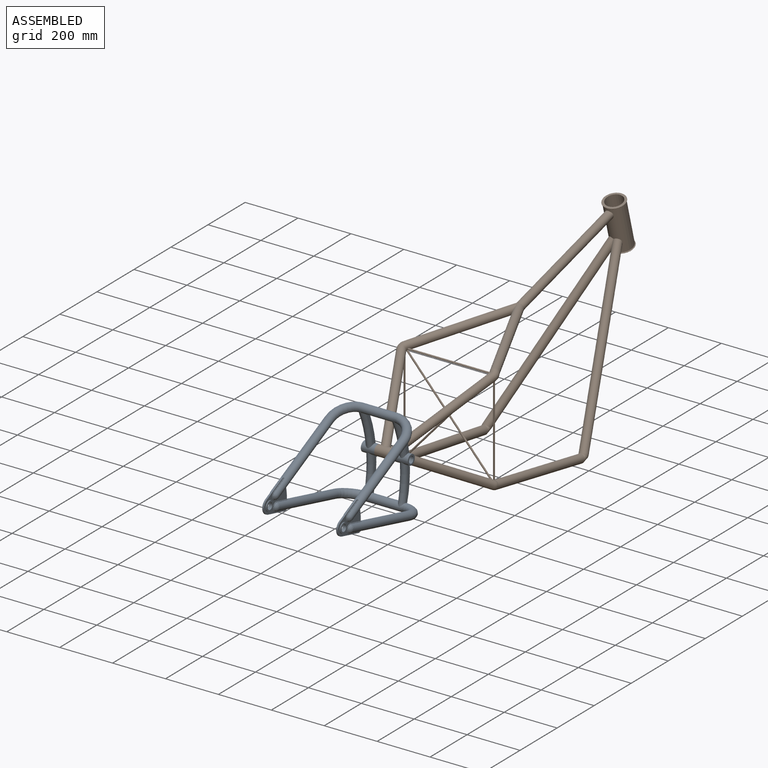
[diagram: assembled view]
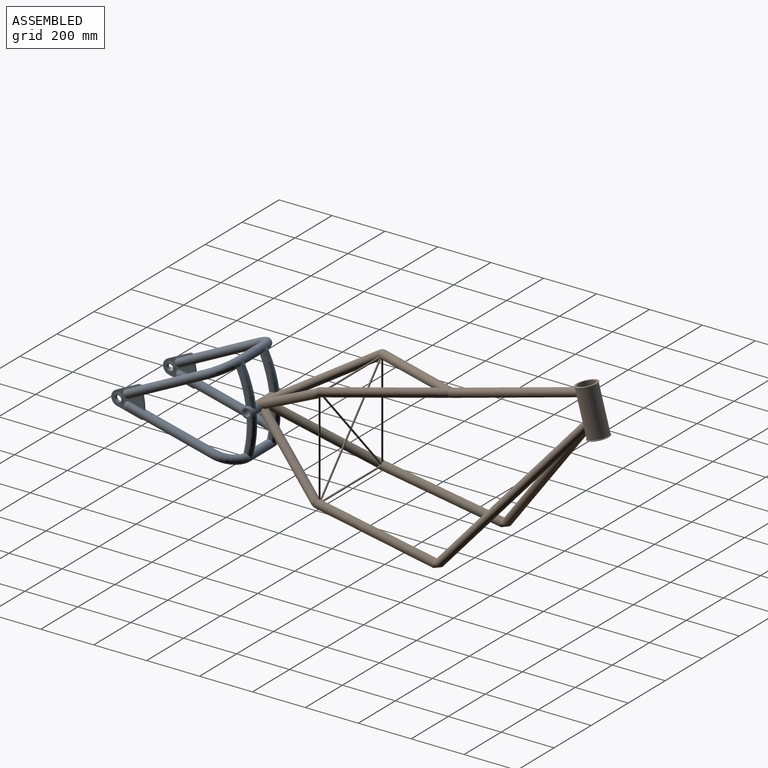
[diagram: assembled view, second angle]
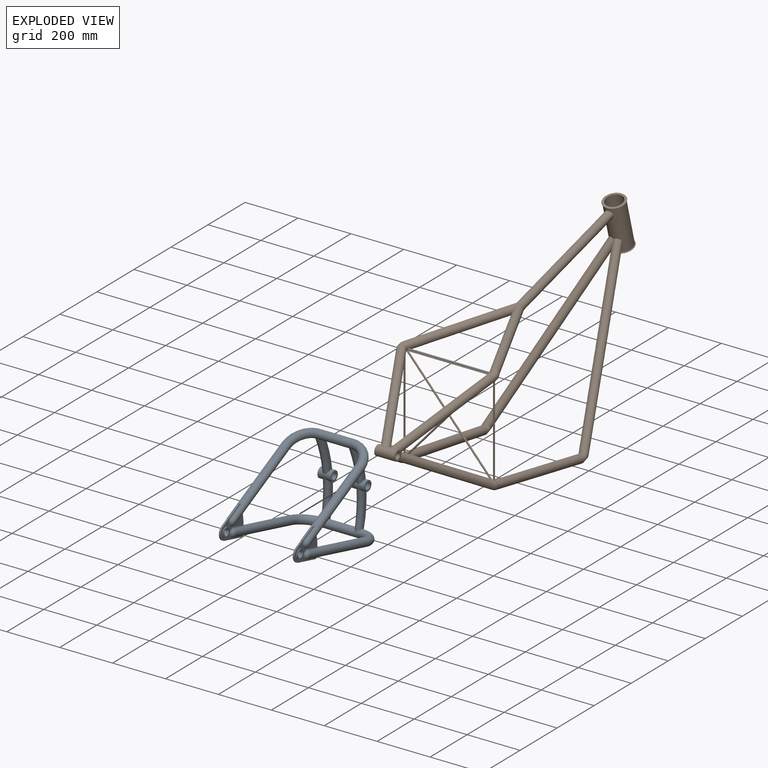
[diagram: exploded view]
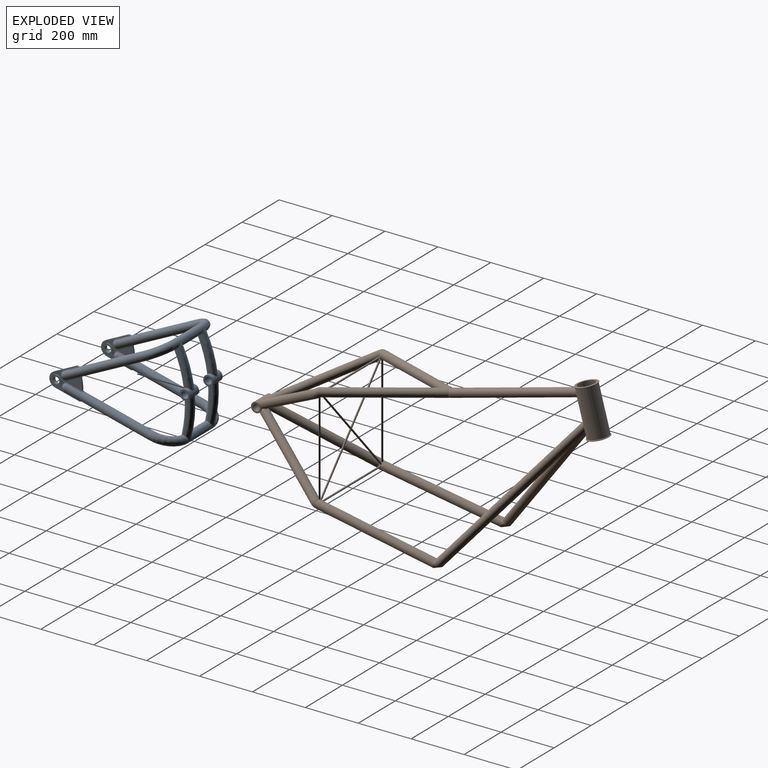
[diagram: exploded view, second angle]
ASSEMBLY  parts=2 mates=2
PART A: 206 faces, bbox 499.2x326.3x341.5 mm
  f0: cylinder r=12.7mm len=50.8mm, axis (0,-1,0), area 4053.7mm2, adj f2,f3
  f1: cylinder r=19.05mm len=50.8mm, axis (0,-1,0), area 4378mm2, adj f2,f3,f4,f5,f41,f42,f45,f46
  f2: plane 38.1x38.1mm, normal (0,1,0), area 633.4mm2, adj f0,f1
  f3: plane 38.1x38.1mm, normal (0,-1,0), area 633.4mm2, adj f0,f1
  f4: torus R=418.53mm, axis (0,-1,0), area 5792.7mm2, adj f1,f48,f49,f50,f52
  f5: torus R=443.93mm, axis (0,-1,0), area 5440.1mm2, adj f1,f49,f50,f52,f59
  f6: cylinder r=1.59mm len=9.53mm, axis (0,1,0), area 24.2mm2, adj f7,f11,f16,f29
  f7: cylinder r=1.59mm len=48.48mm, axis (0.77,0,-0.64), area 193.5mm2, adj f6,f13,f16,f29,f30
  f8: cylinder r=1.59mm len=45.59mm, axis (-0.77,0,0.64), area 181.6mm2, adj f12,f13,f16,f24,f30
  f9: cylinder r=1.59mm len=45.59mm, axis (0.77,0,-0.64), area 181.6mm2, adj f10,f12,f16,f24,f31
  f10: torus R=15.85mm, axis (0,1,0), area 165.3mm2, adj f9,f11,f15,f31
  f11: cylinder r=1.59mm len=48.48mm, axis (-0.77,0,0.64), area 193.5mm2, adj f6,f10,f16,f29,f31
  f12: cylinder r=1.59mm len=9.53mm, axis (0,-1,0), area 24.9mm2, adj f8,f9,f16,f24
  f13: torus R=15.85mm, axis (0,-1,0), area 165.3mm2, adj f7,f8,f14,f30
  f14: sphere r=15.88mm, area 561.4mm2, adj f13,f16
  f15: sphere r=15.88mm, area 561.4mm2, adj f10,f16
  f16: cylinder r=15.88mm len=273.36mm, axis (0.77,0,-0.64), area 31821.4mm2, adj f6,f7,f8,f9,f11,f12,f14,f15
  f17: sphere r=15.88mm, area 561.4mm2, adj f40,f101
  f18: sphere r=15.88mm, area 561.4mm2, adj f40,f98
  f19: sphere r=15.88mm, area 561.4mm2, adj f21,f93
  f20: sphere r=15.88mm, area 561.4mm2, adj f21,f89
  f21: cylinder r=15.88mm len=330.2mm, axis (-1,0,0), area 31821mm2, adj f19,f20,f59,f88,f90,f91,f92,f94
  f22: sphere r=15.88mm, area 561.4mm2, adj f37,f85
  f23: sphere r=15.88mm, area 561.4mm2, adj f37,f81
  f24: cylinder r=177.8mm len=43.86mm, axis (0,-1,0), area 297.2mm2, adj f8,f9,f12,f30,f31,f82,f83,f84
  f25: cylinder r=4.96mm len=6.35mm, axis (0,-1,0), area 40.3mm2, adj f26,f30,f31,f80,f86,f87
  f26: plane 95.5x6.35mm, normal (0,0,-1), area 606.4mm2, adj f25,f27,f30,f31
  f27: cylinder r=28.12mm len=49.67mm, axis (0,-1,0), area 436.3mm2, adj f26,f28,f30,f31
  f28: plane 73.16x61.39mm, normal (0.64,0,0.77), area 606.4mm2, adj f27,f29,f30,f31
  f29: cylinder r=4.96mm len=6.35mm, axis (0,-1,0), area 40.3mm2, adj f6,f7,f11,f28,f30,f31
  f30: plane 128.37x112.21mm, normal (0,1,0), area 3675.8mm2, adj f7,f8,f13,f24,f25,f26,f27,f28
  f31: plane 128.37x112.21mm, normal (0,-1,0), area 3675.8mm2, adj f9,f10,f11,f24,f25,f26,f27,f28
  f32: cylinder r=18.85mm len=37.7mm, axis (0,-1,0), area 451.2mm2, adj f31,f36
  f33: cylinder r=12.5mm len=25mm, axis (0,-1,0), area 1097.2mm2, adj f35,f36
  f34: cylinder r=18.85mm len=37.7mm, axis (0,-1,0), area 451.2mm2, adj f30,f35
  f35: plane 37.7x37.7mm, normal (0,1,0), area 625.4mm2, adj f33,f34
  f36: plane 37.7x37.7mm, normal (0,-1,0), area 625.4mm2, adj f32,f33
  f37: cylinder r=15.88mm len=330.2mm, axis (1,0,0), area 31821.4mm2, adj f22,f23,f60,f80,f82,f83,f84,f86
  f38: torus R=443.93mm, axis (0,1,0), area 5439.6mm2, adj f52,f57,f58,f60,f76
  f39: torus R=418.53mm, axis (0,1,0), area 5792.4mm2, adj f52,f56,f57,f58,f76
  f40: cylinder r=15.88mm len=273.36mm, axis (-0.77,0,0.64), area 31821mm2, adj f17,f18,f53,f96,f97,f99,f100,f102
  f41: plane 114.28x73.14mm, normal (0,-1,0), area 1033.6mm2, adj f1,f45,f46,f47,f53
  f42: plane 114.28x73.25mm, normal (0,1,0), area 1033.8mm2, adj f1,f45,f46,f51
  f43: plane 114.28x73.14mm, normal (0,1,0), area 1033.6mm2, adj f54,f55,f61,f62,f76
  f44: plane 114.28x73.25mm, normal (0,-1,0), area 1033.8mm2, adj f51,f61,f62,f76
  f45: torus R=418.53mm, axis (0,-1,0), area 5793.6mm2, adj f1,f41,f42,f47,f51
  f46: torus R=443.93mm, axis (0,-1,0), area 5441.6mm2, adj f1,f41,f42,f51,f53
  f47: cylinder r=15.88mm len=23.24mm, axis (0,1,0), area 224.2mm2, adj f41,f45,f53
  f48: cylinder r=15.88mm len=16.6mm, axis (0,1,0), area 224.2mm2, adj f4,f49,f59
  f49: plane 128.9x27.56mm, normal (0,-1,0), area 1033.6mm2, adj f1,f4,f5,f48,f59
  f50: plane 128.89x27.55mm, normal (0,1,0), area 1033.8mm2, adj f1,f4,f5,f52
  f51: cylinder r=15.88mm len=127mm, axis (0,1,0), area 11798mm2, adj f42,f44,f45,f46,f53,f54,f61,f62
  f52: cylinder r=15.88mm len=127mm, axis (0,1,0), area 11798mm2, adj f4,f5,f38,f39,f50,f58,f59,f60
  f53: torus R=76.2mm, axis (-0.64,0,-0.77), area 11731.3mm2, adj f40,f41,f46,f47,f51
  f54: torus R=76.2mm, axis (-0.64,0,-0.77), area 11731.3mm2, adj f16,f43,f51,f55,f61
  f55: cylinder r=15.88mm len=23.24mm, axis (0,-1,0), area 224.2mm2, adj f43,f54,f62
  f56: cylinder r=15.88mm len=16.6mm, axis (0,-1,0), area 224.2mm2, adj f39,f57,f60
  f57: plane 128.9x27.56mm, normal (0,1,0), area 1033.6mm2, adj f38,f39,f56,f60,f76
  f58: plane 128.89x27.55mm, normal (0,-1,0), area 1033.8mm2, adj f38,f39,f52,f76
  f59: torus R=76.2mm, axis (0,0,-1), area 11731.3mm2, adj f5,f21,f48,f49,f52
  f60: torus R=76.2mm, axis (0,0,-1), area 11731.3mm2, adj f37,f38,f52,f56,f57
  f61: torus R=443.93mm, axis (0,1,0), area 5440.1mm2, adj f43,f44,f51,f54,f76
  f62: torus R=418.53mm, axis (0,1,0), area 5792.7mm2, adj f43,f44,f51,f55,f76
  f63: cylinder r=177.8mm len=43.86mm, axis (0,1,0), area 297.2mm2, adj f69,f70,f90,f91,f92,f96,f99,f100
  f64: cylinder r=4.96mm len=6.35mm, axis (0,1,0), area 40.3mm2, adj f65,f69,f70,f88,f94,f95
  f65: plane 95.5x6.35mm, normal (0,0,-1), area 606.4mm2, adj f64,f66,f69,f70
  f66: cylinder r=28.12mm len=49.67mm, axis (0,1,0), area 436.3mm2, adj f65,f67,f69,f70
  f67: plane 73.16x61.39mm, normal (0.64,0,0.77), area 606.4mm2, adj f66,f68,f69,f70
  f68: cylinder r=4.96mm len=6.35mm, axis (0,1,0), area 40.3mm2, adj f67,f69,f70,f97,f102,f103
  f69: plane 128.37x112.21mm, normal (0,-1,0), area 3675.8mm2, adj f63,f64,f65,f66,f67,f68,f73,f92
  f70: plane 128.37x112.21mm, normal (0,1,0), area 3675.8mm2, adj f63,f64,f65,f66,f67,f68,f71,f88
  f71: cylinder r=18.85mm len=37.7mm, axis (0,1,0), area 451.2mm2, adj f70,f75
  f72: cylinder r=12.5mm len=25mm, axis (0,1,0), area 1097.2mm2, adj f74,f75
  f73: cylinder r=18.85mm len=37.7mm, axis (0,1,0), area 451.2mm2, adj f69,f74
  f74: plane 37.7x37.7mm, normal (0,-1,0), area 625.4mm2, adj f72,f73
  f75: plane 37.7x37.7mm, normal (0,1,0), area 625.4mm2, adj f71,f72
  f76: cylinder r=19.05mm len=50.8mm, axis (0,1,0), area 4378.1mm2, adj f38,f39,f43,f44,f57,f58,f61,f62
  f77: plane 38.1x38.1mm, normal (0,-1,0), area 633.4mm2, adj f76,f79
  f78: plane 38.1x38.1mm, normal (0,1,0), area 633.4mm2, adj f76,f79
  f79: cylinder r=12.7mm len=50.8mm, axis (0,-1,0), area 4053.7mm2, adj f77,f78
  f80: cylinder r=1.59mm len=61.4mm, axis (-1,0,0), area 193.5mm2, adj f25,f31,f37,f81,f87
  f81: torus R=15.85mm, axis (0,-1,0), area 165.3mm2, adj f23,f31,f80,f83
  f82: cylinder r=1.59mm len=9.53mm, axis (0,-1,0), area 24.9mm2, adj f24,f37,f83,f84
  f83: cylinder r=1.59mm len=57.63mm, axis (1,0,0), area 181.6mm2, adj f24,f31,f37,f81,f82
  f84: cylinder r=1.59mm len=57.63mm, axis (-1,0,0), area 181.6mm2, adj f24,f30,f37,f82,f85
  f85: torus R=15.85mm, axis (0,1,0), area 165.3mm2, adj f22,f30,f84,f86
  f86: cylinder r=1.59mm len=61.4mm, axis (1,0,0), area 193.5mm2, adj f25,f30,f37,f85,f87
  f87: cylinder r=1.59mm len=9.53mm, axis (0,1,0), area 24.2mm2, adj f25,f37,f80,f86
  f88: cylinder r=1.59mm len=61.4mm, axis (-1,0,0), area 193.5mm2, adj f21,f64,f70,f89,f95
  f89: torus R=15.85mm, axis (0,1,0), area 165.3mm2, adj f20,f70,f88,f91
  f90: cylinder r=1.59mm len=9.53mm, axis (0,1,0), area 24.9mm2, adj f21,f63,f91,f92
  f91: cylinder r=1.59mm len=57.63mm, axis (1,0,0), area 181.6mm2, adj f21,f63,f70,f89,f90
  f92: cylinder r=1.59mm len=57.63mm, axis (-1,0,0), area 181.6mm2, adj f21,f63,f69,f90,f93
  f93: torus R=15.85mm, axis (0,-1,0), area 165.3mm2, adj f19,f69,f92,f94
  f94: cylinder r=1.59mm len=61.4mm, axis (1,0,0), area 193.5mm2, adj f21,f64,f69,f93,f95
  f95: cylinder r=1.59mm len=9.53mm, axis (0,-1,0), area 24.2mm2, adj f21,f64,f88,f94
  f96: cylinder r=1.59mm len=9.53mm, axis (0,1,0), area 24.9mm2, adj f40,f63,f99,f100
  f97: cylinder r=1.59mm len=48.48mm, axis (-0.77,0,0.64), area 193.5mm2, adj f40,f68,f70,f98,f103
  f98: torus R=15.85mm, axis (0,-1,0), area 165.3mm2, adj f18,f70,f97,f99
  f99: cylinder r=1.59mm len=45.59mm, axis (0.77,0,-0.64), area 181.6mm2, adj f40,f63,f70,f96,f98
  f100: cylinder r=1.59mm len=45.59mm, axis (-0.77,0,0.64), area 181.6mm2, adj f40,f63,f69,f96,f101
  f101: torus R=15.85mm, axis (0,1,0), area 165.3mm2, adj f17,f69,f100,f102
  f102: cylinder r=1.59mm len=48.48mm, axis (0.77,0,-0.64), area 193.5mm2, adj f40,f68,f69,f101,f103
  f103: cylinder r=1.59mm len=9.53mm, axis (0,-1,0), area 24.2mm2, adj f40,f68,f97,f102
  f104: cylinder r=15.88mm len=41.75mm, axis (0.77,0,-0.64), area 37.7mm2, adj f105,f108,f110,f113
  f105: plane 41.71x35mm, normal (0.64,0,0.77), area 37.6mm2, adj f104,f109,f110,f113
  f106: cylinder r=15.88mm len=44.64mm, axis (0.77,0,-0.64), area 40.3mm2, adj f107,f108,f111,f114
  f107: plane 44.6x37.43mm, normal (-0.64,0,-0.77), area 40.2mm2, adj f106,f109,f111,f114
  f108: sphere r=15.88mm, area 34.5mm2, adj f104,f106,f109,f112
  f109: cylinder r=15.85mm len=27.99mm, axis (0,-1,0), area 34.3mm2, adj f105,f107,f108,f112
  f110: cylinder r=1.59mm len=0.69mm, axis (0,-1,0), area 0mm2, adj f104,f105,f113
  f111: cylinder r=1.59mm len=44.64mm, axis (-0.77,0,0.64), area 3.2mm2, adj f106,f107,f112,f114
  f112: torus R=15.85mm, axis (0,1,0), area 2.7mm2, adj f108,f109,f111,f113
  f113: cylinder r=1.59mm len=41.75mm, axis (0.77,0,-0.64), area 3mm2, adj f104,f105,f110,f112
  f114: cylinder r=1.59mm len=0.69mm, axis (0,1,0), area 0mm2, adj f106,f107,f111
  f115: cylinder r=15.88mm len=41.75mm, axis (0.77,0,-0.64), area 37.7mm2, adj f116,f117,f121,f122
  f116: plane 41.71x35mm, normal (0.64,0,0.77), area 37.6mm2, adj f115,f118,f121,f122
  f117: sphere r=15.88mm, area 34.5mm2, adj f115,f118,f119,f123
  f118: cylinder r=15.85mm len=27.99mm, axis (0,-1,0), area 34.3mm2, adj f116,f117,f120,f123
  f119: cylinder r=15.88mm len=44.64mm, axis (0.77,0,-0.64), area 40.3mm2, adj f117,f120,f124,f125
  f120: plane 44.6x37.43mm, normal (-0.64,0,-0.77), area 40.2mm2, adj f118,f119,f124,f125
  f121: cylinder r=1.59mm len=0.69mm, axis (0,-1,0), area 0mm2, adj f115,f116,f122
  f122: cylinder r=1.59mm len=41.75mm, axis (-0.77,0,0.64), area 3mm2, adj f115,f116,f121,f123
  f123: torus R=15.85mm, axis (0,-1,0), area 2.7mm2, adj f117,f118,f122,f124
  f124: cylinder r=1.59mm len=44.64mm, axis (0.77,0,-0.64), area 3.2mm2, adj f119,f120,f123,f125
  f125: cylinder r=1.59mm len=0.69mm, axis (0,1,0), area 0mm2, adj f119,f120,f124
  f126: cylinder r=1.59mm len=44.64mm, axis (-0.77,0,0.64), area 3.2mm2, adj f127,f130,f133,f134
  f127: torus R=15.85mm, axis (0,-1,0), area 2.7mm2, adj f126,f129,f135,f136
  f128: cylinder r=1.59mm len=0.69mm, axis (0,1,0), area 0mm2, adj f129,f131,f132
  f129: cylinder r=1.59mm len=41.75mm, axis (0.77,0,-0.64), area 3mm2, adj f127,f128,f131,f132
  f130: cylinder r=1.59mm len=0.69mm, axis (0,-1,0), area 0mm2, adj f126,f133,f134
  f131: plane 41.71x35mm, normal (0.64,0,0.77), area 37.6mm2, adj f128,f129,f132,f135
  f132: cylinder r=15.88mm len=41.75mm, axis (-0.77,0,0.64), area 37.7mm2, adj f128,f129,f131,f136
  f133: plane 44.6x37.43mm, normal (-0.64,0,-0.77), area 40.2mm2, adj f126,f130,f134,f135
  f134: cylinder r=15.88mm len=44.64mm, axis (-0.77,0,0.64), area 40.3mm2, adj f126,f130,f133,f136
  f135: cylinder r=15.85mm len=27.99mm, axis (0,1,0), area 34.3mm2, adj f127,f131,f133,f136
  f136: sphere r=15.88mm, area 34.5mm2, adj f127,f132,f134,f135
  f137: cylinder r=1.59mm len=0.69mm, axis (0,-1,0), area 0mm2, adj f138,f146,f147
  f138: cylinder r=1.59mm len=44.64mm, axis (0.77,0,-0.64), area 3.2mm2, adj f137,f139,f146,f147
  f139: torus R=15.85mm, axis (0,1,0), area 2.7mm2, adj f138,f140,f144,f145
  f140: cylinder r=1.59mm len=41.75mm, axis (-0.77,0,0.64), area 3mm2, adj f139,f141,f142,f143
  f141: cylinder r=1.59mm len=0.69mm, axis (0,1,0), area 0mm2, adj f140,f142,f143
  f142: plane 41.71x35mm, normal (0.64,0,0.77), area 37.6mm2, adj f140,f141,f143,f144
  f143: cylinder r=15.88mm len=41.75mm, axis (-0.77,0,0.64), area 37.7mm2, adj f140,f141,f142,f145
  f144: cylinder r=15.85mm len=27.99mm, axis (0,1,0), area 34.3mm2, adj f139,f142,f145,f146
  f145: sphere r=15.88mm, area 34.5mm2, adj f139,f143,f144,f147
  f146: plane 44.6x37.43mm, normal (-0.64,0,-0.77), area 40.2mm2, adj f137,f138,f144,f147
  f147: cylinder r=15.88mm len=44.64mm, axis (-0.77,0,0.64), area 40.3mm2, adj f137,f138,f145,f146
  f148: plane 58.23x0.69mm, normal (0,0,1), area 40.2mm2, adj f149,f152,f155,f158
  f149: cylinder r=15.88mm len=58.23mm, axis (-1,0,0), area 40.3mm2, adj f148,f153,f155,f158
  f150: plane 54.45x0.69mm, normal (0,0,-1), area 37.6mm2, adj f151,f152,f154,f157
  f151: cylinder r=15.88mm len=54.45mm, axis (-1,0,0), area 37.7mm2, adj f150,f153,f154,f157
  f152: cylinder r=15.85mm len=31.7mm, axis (0,1,0), area 34.3mm2, adj f148,f150,f153,f156
  f153: sphere r=15.88mm, area 34.5mm2, adj f149,f151,f152,f156
  f154: cylinder r=1.59mm len=0.69mm, axis (0,1,0), area 0mm2, adj f150,f151,f157
  f155: cylinder r=1.59mm len=58.23mm, axis (-1,0,0), area 3.2mm2, adj f148,f149,f156,f158
  f156: torus R=15.85mm, axis (0,1,0), area 2.7mm2, adj f152,f153,f155,f157
  f157: cylinder r=1.59mm len=54.45mm, axis (1,0,0), area 3mm2, adj f150,f151,f154,f156
  f158: cylinder r=1.59mm len=0.69mm, axis (0,-1,0), area 0mm2, adj f148,f149,f155
  f159: cylinder r=1.59mm len=0.69mm, axis (0,-1,0), area 0mm2, adj f160,f168,f169
  f160: cylinder r=1.59mm len=58.23mm, axis (1,0,0), area 3.2mm2, adj f159,f161,f168,f169
  f161: torus R=15.85mm, axis (0,-1,0), area 2.7mm2, adj f160,f163,f166,f167
  f162: cylinder r=1.59mm len=0.69mm, axis (0,1,0), area 0mm2, adj f163,f164,f165
  f163: cylinder r=1.59mm len=54.45mm, axis (-1,0,0), area 3mm2, adj f161,f162,f164,f165
  f164: plane 54.45x0.69mm, normal (0,0,-1), area 37.6mm2, adj f162,f163,f165,f166
  f165: cylinder r=15.88mm len=54.45mm, axis (-1,0,0), area 37.7mm2, adj f162,f163,f164,f167
  f166: cylinder r=15.85mm len=31.7mm, axis (0,1,0), area 34.3mm2, adj f161,f164,f167,f168
  f167: sphere r=15.88mm, area 34.5mm2, adj f161,f165,f166,f169
  f168: plane 58.23x0.69mm, normal (0,0,1), area 40.2mm2, adj f159,f160,f166,f169
  f169: cylinder r=15.88mm len=58.23mm, axis (-1,0,0), area 40.3mm2, adj f159,f160,f167,f168
  f170: cylinder r=15.88mm len=54.45mm, axis (1,0,0), area 37.7mm2, adj f171,f172,f176,f177
  f171: plane 54.45x0.69mm, normal (0,0,-1), area 37.6mm2, adj f170,f173,f176,f177
  f172: sphere r=15.88mm, area 34.5mm2, adj f170,f173,f174,f178
  f173: cylinder r=15.85mm len=31.7mm, axis (0,-1,0), area 34.3mm2, adj f171,f172,f175,f178
  f174: cylinder r=15.88mm len=58.23mm, axis (1,0,0), area 40.3mm2, adj f172,f175,f179,f180
  f175: plane 58.23x0.69mm, normal (0,0,1), area 40.2mm2, adj f173,f174,f179,f180
  f176: cylinder r=1.59mm len=0.69mm, axis (0,-1,0), area 0mm2, adj f170,f171,f177
  f177: cylinder r=1.59mm len=54.45mm, axis (-1,0,0), area 3mm2, adj f170,f171,f176,f178
  f178: torus R=15.85mm, axis (0,1,0), area 2.7mm2, adj f172,f173,f177,f179
  f179: cylinder r=1.59mm len=58.23mm, axis (1,0,0), area 3.2mm2, adj f174,f175,f178,f180
  f180: cylinder r=1.59mm len=0.69mm, axis (0,1,0), area 0mm2, adj f174,f175,f179
  f181: cylinder r=1.59mm len=0.69mm, axis (0,1,0), area 0mm2, adj f182,f186,f187
  f182: cylinder r=1.59mm len=58.23mm, axis (-1,0,0), area 3.2mm2, adj f181,f184,f186,f187
  f183: cylinder r=1.59mm len=54.45mm, axis (1,0,0), area 3mm2, adj f184,f185,f188,f189
  f184: torus R=15.85mm, axis (0,-1,0), area 2.7mm2, adj f182,f183,f190,f191
  f185: cylinder r=1.59mm len=0.69mm, axis (0,-1,0), area 0mm2, adj f183,f188,f189
  f186: cylinder r=15.88mm len=58.23mm, axis (1,0,0), area 40.3mm2, adj f181,f182,f187,f190
  f187: plane 58.23x0.69mm, normal (0,0,1), area 40.2mm2, adj f181,f182,f186,f191
  f188: cylinder r=15.88mm len=54.45mm, axis (1,0,0), area 37.7mm2, adj f183,f185,f189,f190
  f189: plane 54.45x0.69mm, normal (0,0,-1), area 37.6mm2, adj f183,f185,f188,f191
  f190: sphere r=15.88mm, area 34.5mm2, adj f184,f186,f188,f191
  f191: cylinder r=15.85mm len=31.7mm, axis (0,-1,0), area 34.3mm2, adj f184,f187,f189,f190
  f192: cylinder r=9.53mm len=265.19mm, axis (-0.77,0,0.64), area 19761.6mm2, adj f193,f197
  f193: torus R=76.2mm, axis (-0.64,0,-0.77), area 7163.4mm2, adj f192,f194
  f194: cylinder r=9.53mm len=127mm, axis (0,1,0), area 7600.6mm2, adj f193,f195
  f195: torus R=76.2mm, axis (-0.64,0,-0.77), area 7163.4mm2, adj f194,f196
  f196: cylinder r=9.53mm len=265.19mm, axis (0.77,0,-0.64), area 19761.6mm2, adj f195,f198
  f197: sphere r=9.53mm, area 570mm2, adj f192
  f198: sphere r=9.53mm, area 570mm2, adj f196
  f199: cylinder r=9.53mm len=330.2mm, axis (-1,0,0), area 19761.6mm2, adj f200,f204
  f200: torus R=76.2mm, axis (0,0,-1), area 7163.4mm2, adj f199,f201
  f201: cylinder r=9.53mm len=127mm, axis (0,1,0), area 7600.6mm2, adj f200,f202
  f202: torus R=76.2mm, axis (0,0,-1), area 7163.4mm2, adj f201,f203
  f203: cylinder r=9.53mm len=330.2mm, axis (1,0,0), area 19761.6mm2, adj f202,f205
  f204: sphere r=9.53mm, area 570mm2, adj f199
  f205: sphere r=9.53mm, area 570mm2, adj f203
PART B: 141 faces, bbox 1336.2x406.4x701.2 mm
  f0: torus R=15.88mm, axis (0.5,0,-0.87), area 602.3mm2, adj f1,f56,f57,f58,f59,f60
  f1: torus R=15.88mm, axis (-0.02,-1,-0.01), area 0mm2, adj f0,f2,f60
  f2: cylinder r=15.88mm len=455.72mm, axis (0.98,-0.02,0.17), area 45537.1mm2, adj f1,f3,f55,f57,f58,f59,f60
  f3: cylinder r=3.17mm len=316.9mm, axis (0,-1,0), area 6305.8mm2, adj f2,f4,f54,f57
  f4: torus R=15.88mm, axis (-0.02,1,-0.01), area 535.6mm2, adj f3,f5,f53,f54
  f5: torus R=15.88mm, axis (0.5,0,-0.87), area 602.3mm2, adj f4,f6,f7,f51,f52,f53
  f6: torus R=15.88mm, axis (-0.02,1,-0.01), area 2.6mm2, adj f5,f52,f53,f54
  f7: cylinder r=15.88mm len=329.63mm, axis (0.79,0.4,0.46), area 38090mm2, adj f5,f8,f47
  f8: cylinder r=15.88mm len=329.63mm, axis (0.79,0.4,-0.46), area 38087.5mm2, adj f7,f9,f47
  f9: torus R=15.88mm, axis (-0.5,0,-0.87), area 1335.1mm2, adj f8,f10,f45,f46,f52
  f10: torus R=15.88mm, axis (-0.38,-0.9,0.22), area 8.1mm2, adj f9,f11,f46
  f11: cylinder r=15.88mm len=382.52mm, axis (0.91,-0.41,-0.08), area 39666.6mm2, adj f10,f12,f19,f20,f21,f42,f43,f44
  f12: cylinder r=3.17mm len=313.1mm, axis (0,-1,0), area 6213mm2, adj f11,f13,f21,f45
  f13: torus R=15.88mm, axis (-0.38,0.9,0.22), area 592.7mm2, adj f12,f14,f17,f18,f21
  f14: torus R=15.88mm, axis (-0.5,0,-0.87), area 1340.8mm2, adj f13,f15,f16,f18,f60
  f15: torus R=15.88mm, axis (-0.38,0.9,0.22), area 8.1mm2, adj f14,f18,f21
  f16: cylinder r=15.88mm len=329.63mm, axis (0.79,-0.4,-0.46), area 38087.7mm2, adj f14,f17,f47,f56
  f17: torus R=15.88mm, axis (-0.5,0,-0.87), area 0mm2, adj f13,f16
  f18: cylinder r=3.17mm len=182.82mm, axis (0,0.67,0.75), area 4729.4mm2, adj f13,f14,f15,f21,f46,f58
  f19: cylinder r=15.58mm len=7.61mm, axis (-1,0,0.09), area 18.9mm2, adj f11,f20,f21
  f20: plane 4.95x0.96mm, normal (1,0,-0.09), area 2.4mm2, adj f11,f19,f21
  f21: cylinder r=15.88mm len=382.52mm, axis (0.91,0.41,-0.08), area 39666.6mm2, adj f11,f12,f13,f15,f18,f19,f20,f22
  f22: plane 32.86x18.49mm, normal (-0.91,-0.41,0.08), area 70.1mm2, adj f21,f23,f24,f25,f26,f27
  f23: plane 28.3x9.33mm, normal (1,0,-0.09), area 10.5mm2, adj f22,f24,f27,f44
  f24: cylinder r=15.58mm len=28.3mm, axis (-1,0,0.09), area 112.7mm2, adj f22,f23,f44
  f25: cylinder r=15.58mm len=28.3mm, axis (-1,0,0.09), area 112.7mm2, adj f22,f26,f44
  f26: plane 30.17x11.19mm, normal (1,0,-0.09), area 10.5mm2, adj f22,f25,f27,f44
  f27: torus R=15.88mm, axis (0,-1,0), area 279.5mm2, adj f22,f23,f26,f28,f44
  f28: cylinder r=15.88mm len=488.75mm, axis (0.97,0,-0.26), area 49657.3mm2, adj f27,f29
  f29: cylinder r=38.1mm len=184.21mm, axis (0.26,0,0.97), area 38183mm2, adj f28,f30,f36,f39,f40
  f30: torus R=39.37mm, axis (0.26,0,0.97), area 483.3mm2, adj f29,f31
  f31: torus R=39.37mm, axis (0.26,0,0.97), area 1007.2mm2, adj f30,f32
  f32: plane 78.74x75.99mm, normal (0.26,0,0.97), area 1702.5mm2, adj f31,f33
  f33: cylinder r=31.75mm len=188.23mm, axis (0.26,0,0.97), area 35469.5mm2, adj f32,f34
  f34: plane 78.74x75.99mm, normal (-0.26,0,-0.97), area 1702.5mm2, adj f33,f35
  f35: torus R=39.37mm, axis (0.26,0,0.97), area 1007.2mm2, adj f34,f39
  f36: cylinder r=15.88mm len=540.13mm, axis (0.62,-0.25,-0.74), area 68419.8mm2, adj f29,f37,f40
  f37: torus R=15.88mm, axis (-0.77,0.01,-0.64), area 329.4mm2, adj f36,f38
  f38: torus R=15.88mm, axis (-0.02,1,0), area 1507.8mm2, adj f37,f54
  f39: torus R=39.37mm, axis (0.26,0,0.97), area 483.3mm2, adj f29,f35
  f40: cylinder r=15.88mm len=540.13mm, axis (0.62,0.25,-0.74), area 68419.8mm2, adj f29,f36,f41
  f41: torus R=15.88mm, axis (-0.77,-0.01,-0.64), area 430.4mm2, adj f40,f55
  f42: plane 4.95x0.96mm, normal (1,0,-0.09), area 2.4mm2, adj f11,f21,f43
  f43: cylinder r=15.58mm len=7.61mm, axis (-1,0,0.09), area 18.9mm2, adj f11,f21,f42
  f44: plane 32.86x18.49mm, normal (-0.91,0.41,0.08), area 70.1mm2, adj f11,f23,f24,f25,f26,f27
  f45: torus R=15.88mm, axis (-0.38,-0.9,0.22), area 592.7mm2, adj f9,f11,f12,f46
  f46: cylinder r=3.17mm len=182.98mm, axis (0,-0.67,0.75), area 4723.4mm2, adj f9,f10,f11,f18,f45,f53
  f47: cylinder r=19.05mm len=76.2mm, axis (0,1,0), area 5893mm2, adj f7,f8,f16,f48,f50,f56
  f48: plane 38.1x38.1mm, normal (0,-1,0), area 633.4mm2, adj f47,f49
  f49: cylinder r=12.7mm len=76.2mm, axis (0,1,0), area 6080.5mm2, adj f48,f50
  f50: plane 38.1x38.1mm, normal (0,1,0), area 633.4mm2, adj f47,f49
  f51: torus R=15.88mm, axis (-0.02,1,-0.01), area 0mm2, adj f5,f52,f54
  f52: cylinder r=3.17mm len=351.27mm, axis (0,0,1), area 6936.5mm2, adj f5,f6,f9,f51,f54
  f53: cylinder r=3.17mm len=185.99mm, axis (0,0.67,0.75), area 4809.1mm2, adj f4,f5,f6,f46,f54,f58
  f54: cylinder r=15.88mm len=455.72mm, axis (0.98,0.02,0.17), area 45537.1mm2, adj f3,f4,f6,f38,f51,f52,f53
  f55: torus R=15.88mm, axis (-0.02,-1,0), area 1507.8mm2, adj f2,f41
  f56: cylinder r=15.88mm len=329.63mm, axis (0.79,-0.4,0.46), area 38089.8mm2, adj f0,f16,f47
  f57: torus R=15.88mm, axis (-0.02,-1,-0.01), area 535.6mm2, adj f0,f2,f3,f58
  f58: cylinder r=3.17mm len=185.99mm, axis (0,-0.67,0.75), area 4807.7mm2, adj f0,f2,f18,f53,f57,f59
  f59: torus R=15.88mm, axis (-0.02,-1,-0.01), area 2.6mm2, adj f0,f2,f58,f60
  f60: cylinder r=3.17mm len=351.27mm, axis (0,0,1), area 6936.5mm2, adj f0,f1,f2,f14,f59
  f61: cylinder r=38.1mm len=23.53mm, axis (0.26,0,0.97), area 345.4mm2, adj f62
  f62: cylinder r=9.53mm len=528.48mm, axis (0.62,0.25,-0.74), area 41187.4mm2, adj f61,f63
  f63: torus R=15.88mm, axis (-0.77,-0.01,-0.64), area 248.7mm2, adj f62,f64
  f64: torus R=15.88mm, axis (-0.02,-1,0), area 994.9mm2, adj f63,f68
  f65: cylinder r=3.17mm len=5.66mm, axis (0,-0.67,0.75), area 7.7mm2, adj f67,f68,f69
  f66: sphere r=3.17mm, area 31.7mm2, adj f67,f69
  f67: cylinder r=3.17mm len=6.35mm, axis (0,-1,0), area 55.1mm2, adj f65,f66,f68,f70,f71
  f68: cylinder r=9.53mm len=453.5mm, axis (0.98,-0.02,0.17), area 27298.9mm2, adj f64,f65,f67,f69,f71
  f69: cylinder r=3.17mm len=7.42mm, axis (0,0,1), area 75.9mm2, adj f65,f66,f68,f70,f71
  f70: cylinder r=3.17mm len=6.58mm, axis (0,-0.67,0.75), area 10.2mm2, adj f67,f69,f71
  f71: torus R=15.88mm, axis (-0.02,-1,-0.01), area 314.3mm2, adj f67,f68,f69,f70,f72
  f72: torus R=15.88mm, axis (0.5,0,-0.87), area 373.1mm2, adj f71,f74
  f73: cylinder r=15.88mm len=17.8mm, axis (0.79,-0.4,-0.46), area 0mm2, adj f74,f75
  f74: cylinder r=9.53mm len=317.1mm, axis (0.79,-0.4,0.46), area 22889.5mm2, adj f72,f73,f75
  f75: cylinder r=19.05mm len=17.8mm, axis (0,1,0), area 92.4mm2, adj f73,f74
  f76: cylinder r=19.05mm len=20.81mm, axis (0,1,0), area 216.5mm2, adj f77,f78
  f77: cylinder r=15.88mm len=19.1mm, axis (0.79,0.4,0.46), area 63.4mm2, adj f76,f78
  f78: cylinder r=9.53mm len=317.1mm, axis (0.79,0.4,-0.46), area 22800mm2, adj f76,f77,f79
  f79: torus R=15.88mm, axis (-0.5,0,-0.87), area 798.8mm2, adj f78,f80,f90,f91
  f80: cylinder r=3.17mm len=12.9mm, axis (0,0,1), area 146.8mm2, adj f79,f81,f82,f83,f89,f90
  f81: cylinder r=3.17mm len=5.31mm, axis (0,0,1), area 4.1mm2, adj f80,f82,f83
  f82: cylinder r=3.17mm len=6.35mm, axis (0,-1,0), area 25.3mm2, adj f80,f81,f83,f91
  f83: cylinder r=3.17mm len=8.4mm, axis (0,-0.67,0.75), area 81.9mm2, adj f80,f81,f82,f84,f89
  f84: cylinder r=3.17mm len=6.35mm, axis (0,-1,0), area 26.4mm2, adj f83,f85,f90,f91
  f85: cylinder r=9.53mm len=368.24mm, axis (0.91,-0.41,-0.08), area 23447.7mm2, adj f84,f86,f87,f88,f90,f91
  f86: cylinder r=15.58mm len=13.77mm, axis (-1,0,0.09), area 0mm2, adj f85,f88
  f87: cylinder r=15.88mm len=20.3mm, axis (0.91,0.41,-0.08), area 248.2mm2, adj f85,f88
  f88: plane 25.03x14.5mm, normal (1,0,-0.09), area 88mm2, adj f85,f86,f87
  f89: sphere r=3.17mm, area 63.3mm2, adj f80,f83
  f90: torus R=15.88mm, axis (-0.38,-0.9,0.22), area 334.1mm2, adj f79,f80,f84,f85,f91
  f91: cylinder r=3.17mm len=6.35mm, axis (0,-0.67,0.75), area 11.3mm2, adj f79,f82,f84,f85,f90
  f92: cylinder r=19.05mm len=17.8mm, axis (0,1,0), area 92.4mm2, adj f93,f94
  f93: cylinder r=15.88mm len=17.8mm, axis (0.79,0.4,-0.46), area 0mm2, adj f92,f94
  f94: cylinder r=9.53mm len=317.1mm, axis (0.79,0.4,0.46), area 22889.5mm2, adj f92,f93,f95
  f95: torus R=15.88mm, axis (0.5,0,-0.87), area 373.1mm2, adj f94,f96
  f96: torus R=15.88mm, axis (-0.02,1,-0.01), area 314.3mm2, adj f95,f97,f98,f101,f107
  f97: cylinder r=3.17mm len=6.58mm, axis (0,0.67,0.75), area 10.2mm2, adj f96,f98,f107
  f98: cylinder r=3.17mm len=6.35mm, axis (0,-1,0), area 55.1mm2, adj f96,f97,f99,f100,f101
  f99: cylinder r=3.17mm len=5.66mm, axis (0,0.67,0.75), area 7.7mm2, adj f98,f101,f107
  f100: sphere r=3.17mm, area 46.4mm2, adj f98,f107
  f101: cylinder r=9.53mm len=453.5mm, axis (0.98,0.02,0.17), area 27298.9mm2, adj f96,f98,f99,f102,f107
  f102: torus R=15.88mm, axis (-0.02,1,0), area 994.9mm2, adj f101,f103
  f103: torus R=15.88mm, axis (-0.77,0.01,-0.64), area 248.7mm2, adj f102,f104
  f104: cylinder r=9.53mm len=527.71mm, axis (0.62,-0.25,-0.74), area 41037.4mm2, adj f103,f105,f106
  f105: cylinder r=15.88mm len=14.5mm, axis (0.62,0.25,-0.74), area 0mm2, adj f104,f106
  f106: cylinder r=38.1mm len=23.27mm, axis (0.26,0,0.97), area 293.7mm2, adj f104,f105
  f107: cylinder r=3.17mm len=7.42mm, axis (0,0,1), area 75.9mm2, adj f96,f97,f99,f100,f101
  f108: cylinder r=15.88mm len=20.3mm, axis (0.91,-0.41,-0.08), area 248.2mm2, adj f109,f123
  f109: cylinder r=9.53mm len=368.24mm, axis (0.91,0.41,-0.08), area 23447.8mm2, adj f108,f110,f120,f121,f122,f123
  f110: cylinder r=3.17mm len=6.35mm, axis (0,0.67,0.75), area 11.3mm2, adj f109,f111,f116,f121,f122
  f111: cylinder r=3.17mm len=6.35mm, axis (0,-1,0), area 25.3mm2, adj f110,f112,f113,f115
  f112: cylinder r=3.17mm len=5.31mm, axis (0,0,1), area 4.1mm2, adj f111,f113,f115
  f113: cylinder r=3.17mm len=12.9mm, axis (0,0,1), area 146.8mm2, adj f111,f112,f114,f115,f116,f121
  f114: sphere r=3.17mm, area 63.3mm2, adj f113,f115
  f115: cylinder r=3.17mm len=8.4mm, axis (0,0.67,0.75), area 81.9mm2, adj f111,f112,f113,f114,f122
  f116: torus R=15.88mm, axis (-0.5,0,-0.87), area 798.8mm2, adj f110,f113,f117,f121
  f117: cylinder r=9.53mm len=317.1mm, axis (0.79,-0.4,-0.46), area 22800mm2, adj f116,f118,f119
  f118: cylinder r=19.05mm len=20.81mm, axis (0,1,0), area 216.6mm2, adj f117,f119
  f119: cylinder r=15.88mm len=19.1mm, axis (0.79,-0.4,0.46), area 63.4mm2, adj f117,f118
  f120: cylinder r=15.58mm len=13.77mm, axis (-1,0,0.09), area 0mm2, adj f109,f123
  f121: torus R=15.88mm, axis (-0.38,0.9,0.22), area 334.1mm2, adj f109,f110,f113,f116,f122
  f122: cylinder r=3.17mm len=6.35mm, axis (0,-1,0), area 26.4mm2, adj f109,f110,f115,f121
  f123: plane 25.04x14.5mm, normal (1,0,-0.09), area 88mm2, adj f108,f109,f120
  f124: cylinder r=9.53mm len=19.16mm, axis (0.91,-0.41,-0.08), area 221.2mm2, adj f125,f129
  f125: cylinder r=9.53mm len=19.16mm, axis (0.91,0.41,-0.08), area 221.2mm2, adj f124,f134
  f126: plane 0.57x0.26mm, normal (-0.91,0.41,0.08), area 0.1mm2, adj f127,f135,f136
  f127: plane 0.57x0.26mm, normal (-0.91,-0.41,0.08), area 0.1mm2, adj f126,f128,f136
  f128: cylinder r=9.53mm len=0.84mm, axis (0.91,0.41,-0.08), area 0.2mm2, adj f127,f129,f136
  f129: plane 18.31x9.23mm, normal (-0.91,0.41,0.08), area 61.2mm2, adj f124,f128,f130,f136
  f130: cylinder r=9.53mm len=0.86mm, axis (0.91,0.41,-0.08), area 0.2mm2, adj f129,f131,f136
  f131: plane 0.57x0.27mm, normal (-0.91,-0.41,0.08), area 0.1mm2, adj f130,f132,f136
  f132: plane 0.57x0.27mm, normal (-0.91,0.41,0.08), area 0.1mm2, adj f131,f133,f136
  f133: cylinder r=9.53mm len=0.86mm, axis (0.91,-0.41,-0.08), area 0.2mm2, adj f132,f134,f136
  f134: plane 18.31x9.23mm, normal (-0.91,-0.41,0.08), area 61.2mm2, adj f125,f133,f135,f136
  f135: cylinder r=9.53mm len=0.84mm, axis (0.91,-0.41,-0.08), area 0.2mm2, adj f126,f134,f136
  f136: cylinder r=9.23mm len=19.33mm, axis (-1,0,0.09), area 520.1mm2, adj f126,f127,f128,f129,f130,f131,f132,f133
  f137: plane 19.05x18.97mm, normal (-1,0,0.09), area 17.6mm2, adj f136,f138
  f138: torus R=15.88mm, axis (0,-1,0), area 165.8mm2, adj f137,f139
  f139: cylinder r=9.53mm len=485.42mm, axis (0.97,0,-0.26), area 29794.4mm2, adj f138,f140
  f140: cylinder r=38.1mm len=19.05mm, axis (0.26,0,0.97), area 287.3mm2, adj f139
PLACE A rot(axis=(-0.12,-0.12,-0.99),90.8deg) t=(0,-247.82,-103.93)mm
PLACE B rot(axis=(0,0,-1),90deg) t=(0,0,0)mm
MATE ball A.f0 <-> B.f47  axis (-1,0,0) through (38.1,0,0)mm
MATE cylindrical A.f0 <-> B.f47  axis (-1,0,0) through (38.1,0,0)mm
